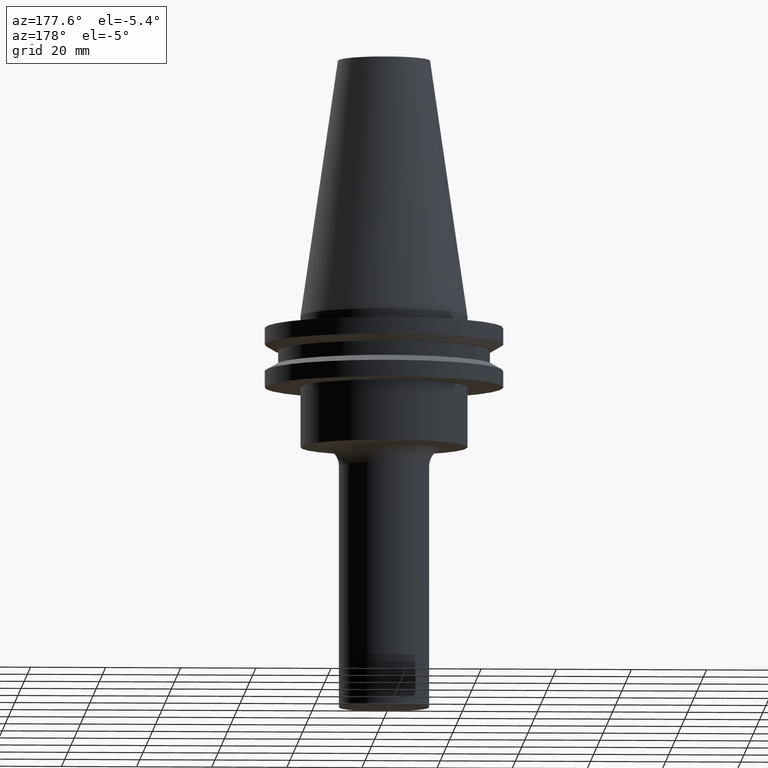
[diagram: clean part render]
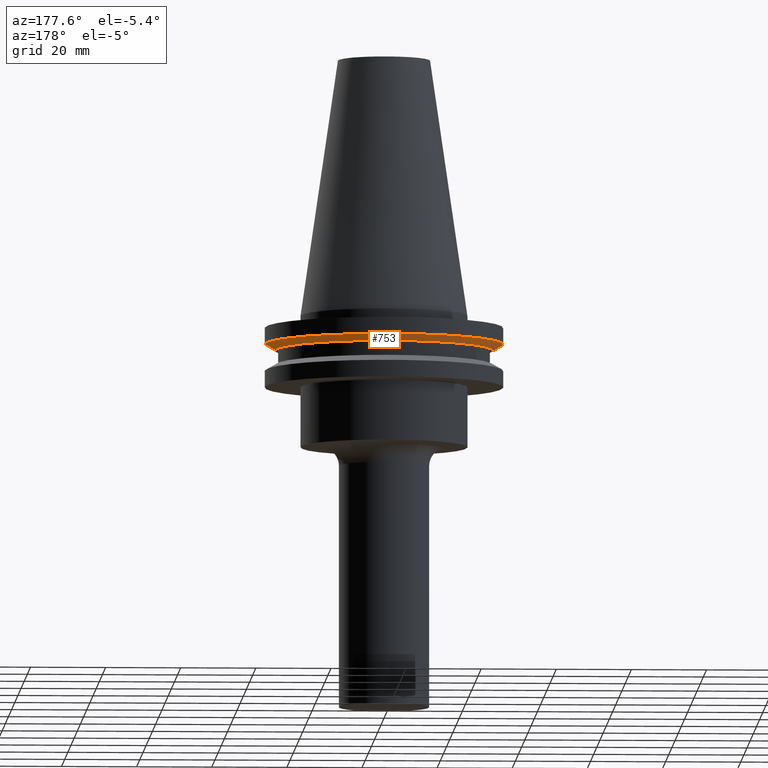
[diagram: same view with one face highlighted and labeled with its STEP entity id]
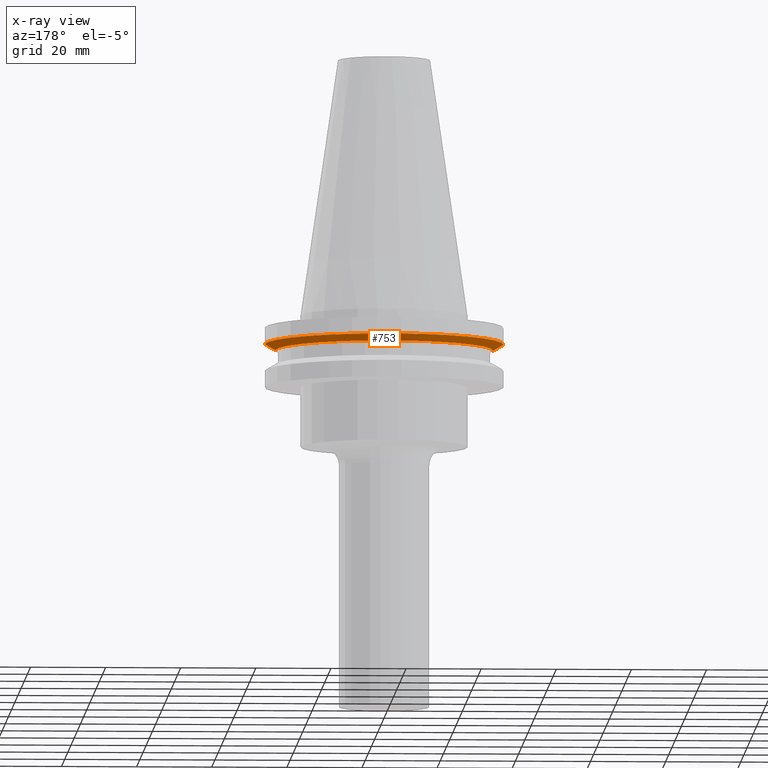
[diagram: x-ray of the same camera — body ghosted, the highlighted face saturated]
A machine part, auxiliary view. The second image highlights one B-rep face of the part: STEP entity #753.
The next image is the same camera in x-ray: the body ghosted, the highlighted face saturated — about 0% of this face is hidden behind the body in this view.
In plain terms, the highlighted conical surface has half-angle 60 deg.
Its self-contained STEP definition (entity closure, byte-faithful):
#76 = DIRECTION ( 'NONE',  ( 1.000000000000000000, 0.000000000000000000, 0.000000000000000000 ) ) ;
#93 = VECTOR ( 'NONE', #201, 1000.000000000000000 ) ;
#100 = CARTESIAN_POINT ( 'NONE',  ( -31.75000000000000000, 3.888253587292846476E-15, -7.605276606597335842 ) ) ;
#108 = AXIS2_PLACEMENT_3D ( 'NONE', #156, #626, #218 ) ;
#135 = LINE ( 'NONE', #734, #93 ) ;
#148 = EDGE_LOOP ( 'NONE', ( #409, #633, #765, #763 ) ) ;
#151 = VERTEX_POINT ( 'NONE', #730 ) ;
#156 = CARTESIAN_POINT ( 'NONE',  ( 0.000000000000000000, 0.000000000000000000, -9.205000000000005400 ) ) ;
#201 = DIRECTION ( 'NONE',  ( -0.8660254037844389297, 1.060575238724907285E-16, 0.4999999999999995004 ) ) ;
#218 = DIRECTION ( 'NONE',  ( 1.000000000000000000, 0.000000000000000000, 0.000000000000000000 ) ) ;
#240 = CARTESIAN_POINT ( 'NONE',  ( 28.97919780457007732, 0.000000000000000000, -9.205000000000005400 ) ) ;
#247 = VERTEX_POINT ( 'NONE', #100 ) ;
#249 = CARTESIAN_POINT ( 'NONE',  ( 31.75000000000000000, 0.000000000000000000, -7.605276606597335842 ) ) ;
#319 = VERTEX_POINT ( 'NONE', #698 ) ;
#361 = DIRECTION ( 'NONE',  ( 0.8660254037844389297, 0.000000000000000000, 0.4999999999999995004 ) ) ;
#409 = ORIENTED_EDGE ( 'NONE', *, *, #646, .T. ) ;
#436 = EDGE_CURVE ( 'NONE', #151, #636, #774, .T. ) ;
#469 = DIRECTION ( 'NONE',  ( -0.000000000000000000, -0.000000000000000000, 1.000000000000000000 ) ) ;
#471 = AXIS2_PLACEMENT_3D ( 'NONE', #724, #551, #76 ) ;
#506 = CIRCLE ( 'NONE', #618, 31.75000000000000000 ) ;
#520 = EDGE_CURVE ( 'NONE', #636, #247, #506, .T. ) ;
#530 = VECTOR ( 'NONE', #361, 1000.000000000000000 ) ;
#551 = DIRECTION ( 'NONE',  ( -0.000000000000000000, -0.000000000000000000, 1.000000000000000000 ) ) ;
#559 = EDGE_CURVE ( 'NONE', #319, #247, #135, .T. ) ;
#563 = FACE_OUTER_BOUND ( 'NONE', #148, .T. ) ;
#603 = CONICAL_SURFACE ( 'NONE', #108, 28.97919780457007732, 1.047197551196598297 ) ;
#618 = AXIS2_PLACEMENT_3D ( 'NONE', #767, #469, #705 ) ;
#626 = DIRECTION ( 'NONE',  ( -0.000000000000000000, -0.000000000000000000, 1.000000000000000000 ) ) ;
#633 = ORIENTED_EDGE ( 'NONE', *, *, #559, .T. ) ;
#636 = VERTEX_POINT ( 'NONE', #249 ) ;
#646 = EDGE_CURVE ( 'NONE', #151, #319, #678, .T. ) ;
#678 = CIRCLE ( 'NONE', #471, 28.97919780457007732 ) ;
#698 = CARTESIAN_POINT ( 'NONE',  ( -28.97919780457007732, 3.718590885307660666E-15, -9.205000000000005400 ) ) ;
#705 = DIRECTION ( 'NONE',  ( 1.000000000000000000, 0.000000000000000000, 0.000000000000000000 ) ) ;
#724 = CARTESIAN_POINT ( 'NONE',  ( 0.000000000000000000, 0.000000000000000000, -9.205000000000005400 ) ) ;
#730 = CARTESIAN_POINT ( 'NONE',  ( 28.97919780457007732, 0.000000000000000000, -9.205000000000005400 ) ) ;
#734 = CARTESIAN_POINT ( 'NONE',  ( -28.97919780457007732, 3.548928183322474856E-15, -9.205000000000005400 ) ) ;
#753 = ADVANCED_FACE ( 'NONE', ( #563 ), #603, .T. ) ;
#763 = ORIENTED_EDGE ( 'NONE', *, *, #436, .F. ) ;
#765 = ORIENTED_EDGE ( 'NONE', *, *, #520, .F. ) ;
#767 = CARTESIAN_POINT ( 'NONE',  ( 0.000000000000000000, 0.000000000000000000, -7.605276606597335842 ) ) ;
#774 = LINE ( 'NONE', #240, #530 ) ;